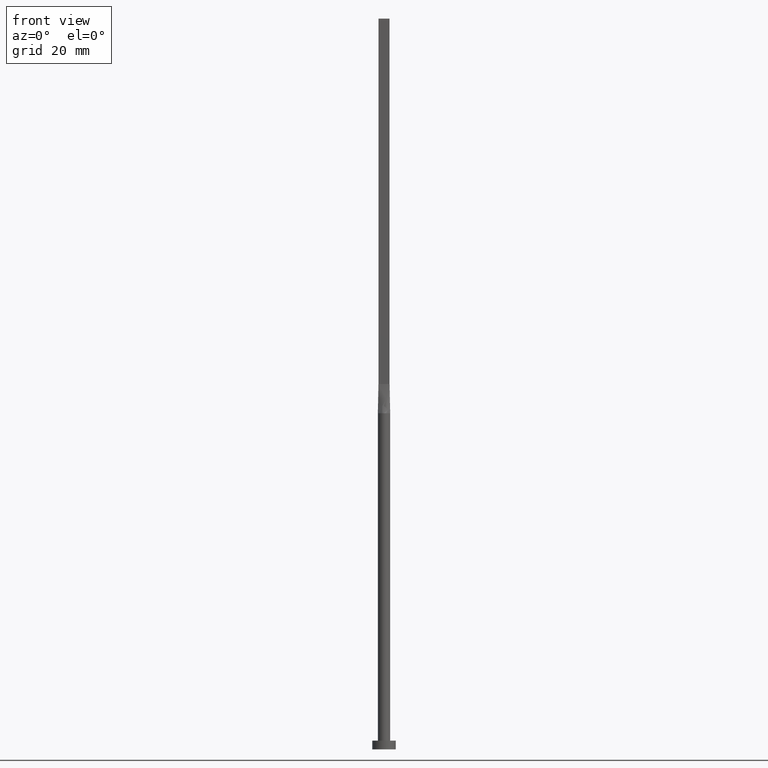
[diagram: clean part render]
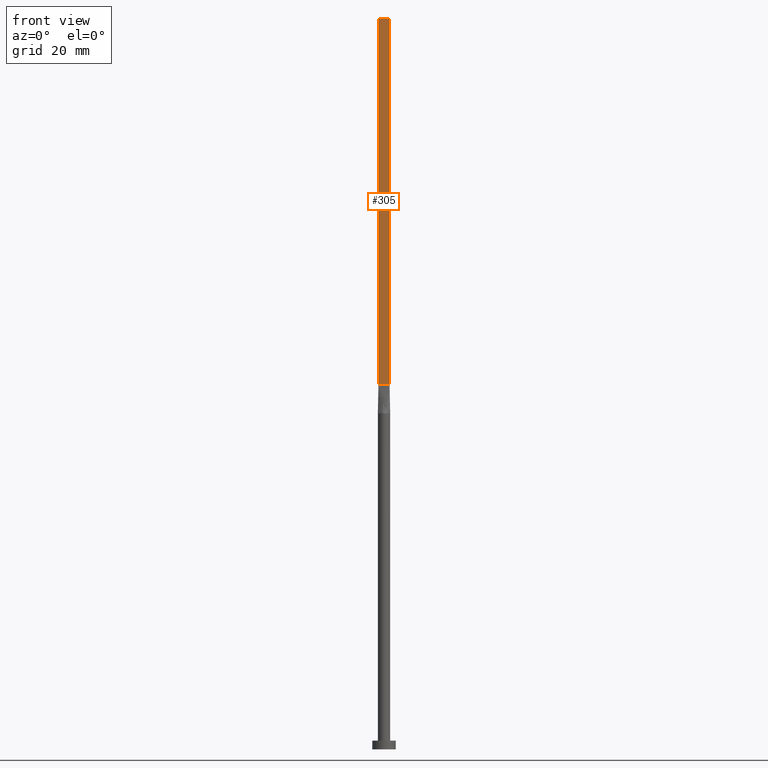
[diagram: same view with one face highlighted and labeled with its STEP entity id]
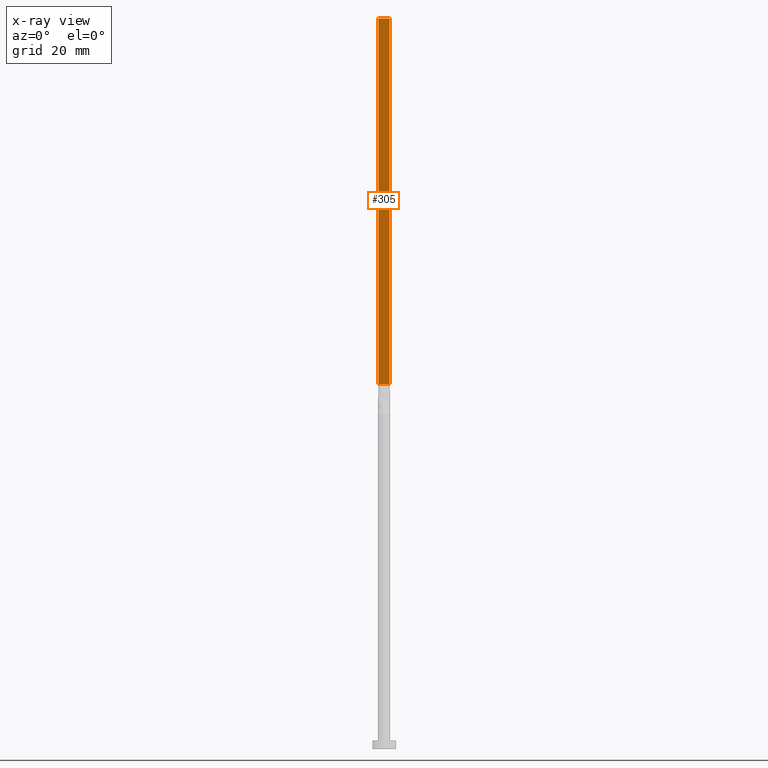
[diagram: x-ray of the same camera — body ghosted, the highlighted face saturated]
A machine part, front view. The second image highlights one B-rep face of the part: STEP entity #305.
The next image is the same camera in x-ray: the body ghosted, the highlighted face saturated — about 0% of this face is hidden behind the body in this view.
In plain terms, the highlighted planar face has unit normal (0, 1, -0).
Its self-contained STEP definition (entity closure, byte-faithful):
#24 = ORIENTED_EDGE ( 'NONE', *, *, #499, .T. ) ;
#47 = ORIENTED_EDGE ( 'NONE', *, *, #485, .T. ) ;
#65 = CARTESIAN_POINT ( 'NONE',  ( 1.899999999999999023, -0.5999999999999997558, 250.0000000000000000 ) ) ;
#69 = CARTESIAN_POINT ( 'NONE',  ( -1.899999999999999911, -0.5999999999999995337, 250.0000000000000000 ) ) ;
#73 = VECTOR ( 'NONE', #275, 1000.000000000000000 ) ;
#90 = DIRECTION ( 'NONE',  ( -1.000000000000000000, 5.706327223607920020E-17, 0.000000000000000000 ) ) ;
#131 = LINE ( 'NONE', #278, #497 ) ;
#157 = ORIENTED_EDGE ( 'NONE', *, *, #159, .F. ) ;
#159 = EDGE_CURVE ( 'NONE', #429, #515, #508, .T. ) ;
#196 = CARTESIAN_POINT ( 'NONE',  ( -1.899999999999999911, -0.5999999999999995337, 125.0000000000000000 ) ) ;
#212 = CARTESIAN_POINT ( 'NONE',  ( -1.899999999999999911, -0.5999999999999995337, 125.0000000000000000 ) ) ;
#220 = AXIS2_PLACEMENT_3D ( 'NONE', #487, #483, #90 ) ;
#238 = DIRECTION ( 'NONE',  ( -0.000000000000000000, -0.000000000000000000, -1.000000000000000000 ) ) ;
#275 = DIRECTION ( 'NONE',  ( -0.000000000000000000, -0.000000000000000000, -1.000000000000000000 ) ) ;
#276 = VERTEX_POINT ( 'NONE', #529 ) ;
#278 = CARTESIAN_POINT ( 'NONE',  ( -1.899999999999999911, -0.5999999999999995337, 250.0000000000000000 ) ) ;
#305 = ADVANCED_FACE ( 'NONE', ( #403 ), #312, .F. ) ;
#312 = PLANE ( 'NONE',  #220 ) ;
#322 = ORIENTED_EDGE ( 'NONE', *, *, #563, .F. ) ;
#323 = VERTEX_POINT ( 'NONE', #212 ) ;
#331 = DIRECTION ( 'NONE',  ( 1.000000000000000000, -5.706327223607920020E-17, 0.000000000000000000 ) ) ;
#364 = CARTESIAN_POINT ( 'NONE',  ( 1.899999999999999023, -0.5999999999999997558, 250.0000000000000000 ) ) ;
#372 = LINE ( 'NONE', #196, #565 ) ;
#403 = FACE_OUTER_BOUND ( 'NONE', #507, .T. ) ;
#427 = CARTESIAN_POINT ( 'NONE',  ( 1.899999999999999023, -0.5999999999999997558, 125.0000000000000000 ) ) ;
#429 = VERTEX_POINT ( 'NONE', #364 ) ;
#440 = VECTOR ( 'NONE', #238, 1000.000000000000000 ) ;
#465 = LINE ( 'NONE', #69, #440 ) ;
#483 = DIRECTION ( 'NONE',  ( 5.706327223607920020E-17, 1.000000000000000000, -0.000000000000000000 ) ) ;
#485 = EDGE_CURVE ( 'NONE', #323, #515, #372, .T. ) ;
#487 = CARTESIAN_POINT ( 'NONE',  ( -1.899999999999999911, -0.5999999999999995337, 250.0000000000000000 ) ) ;
#497 = VECTOR ( 'NONE', #331, 1000.000000000000000 ) ;
#499 = EDGE_CURVE ( 'NONE', #276, #323, #465, .T. ) ;
#507 = EDGE_LOOP ( 'NONE', ( #47, #157, #322, #24 ) ) ;
#508 = LINE ( 'NONE', #65, #73 ) ;
#515 = VERTEX_POINT ( 'NONE', #427 ) ;
#529 = CARTESIAN_POINT ( 'NONE',  ( -1.899999999999999911, -0.5999999999999995337, 250.0000000000000000 ) ) ;
#562 = DIRECTION ( 'NONE',  ( 1.000000000000000000, -5.706327223607918787E-17, 0.000000000000000000 ) ) ;
#563 = EDGE_CURVE ( 'NONE', #276, #429, #131, .T. ) ;
#565 = VECTOR ( 'NONE', #562, 1000.000000000000000 ) ;